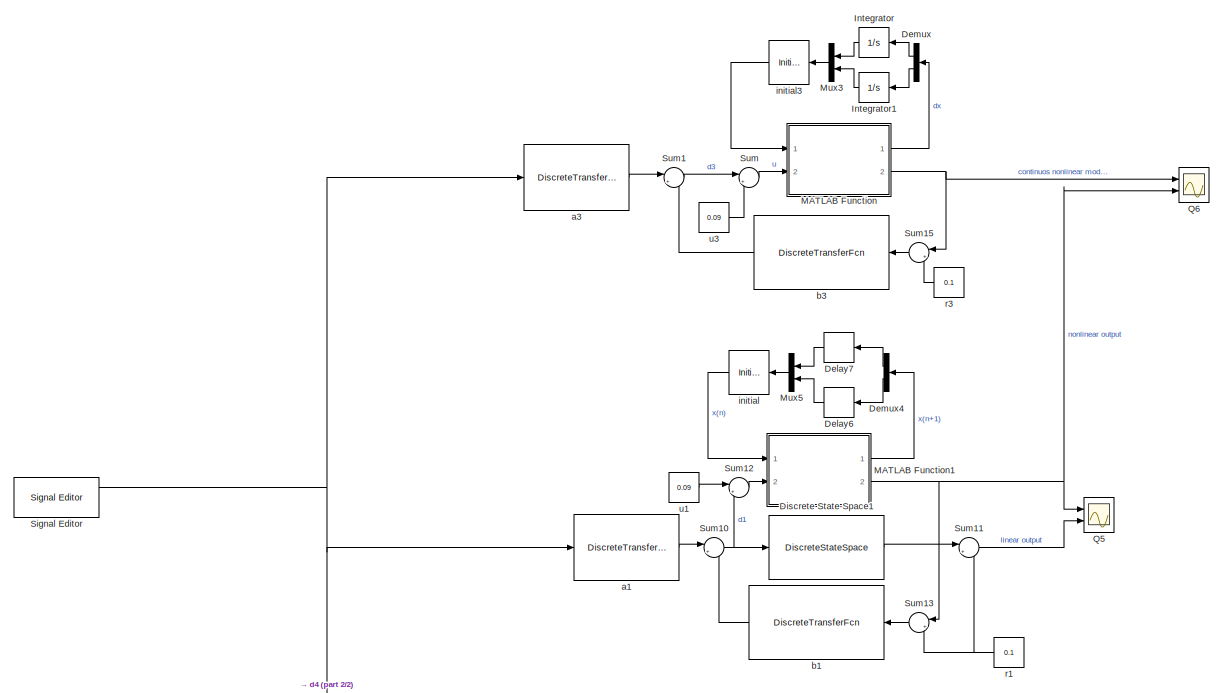
[diagram: root canvas - part 1/2, full width, top band]
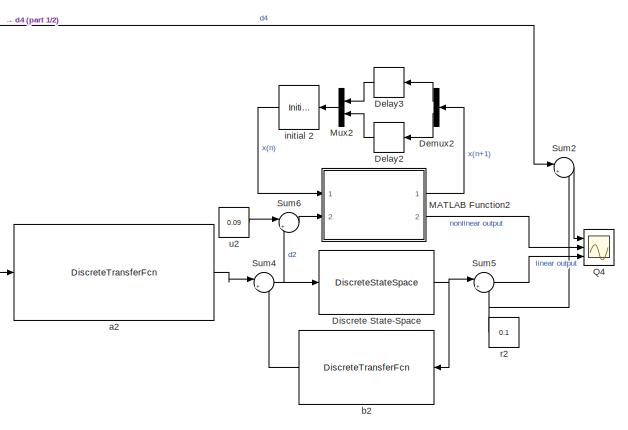
[diagram: root canvas - part 2/2, bottom center region]
MODEL slx_cff41e140faa
KIND model
CONFIG AbsTol = auto
CONFIG EnableMultiTasking = off
CONFIG FixedStep = auto
CONFIG MaxStep = auto
CONFIG MinStep = auto
CONFIG RelTol = 1e-3
CONFIG SampleTimeConstraint = Unconstrained
CONFIG Solver = VariableStepAuto
CONFIG SolverName = VariableStepAuto
CONFIG StartTime = 0.0
CONFIG StopTime = 50
BLOCK [Scope]  Q4
  Floating = off
  NumInputPorts = 3
  Ports = [3]
  ScopeSpecificationString = Simulink.scopes.TimeScopeBlockCfg('CurrentConfiguration', extmgr.ConfigurationSet(extmgr.Configuration('Core','General UI',true),extmgr.Configuration('Core','Source UI',true),extmgr.Configuration('Sources','WiredSimulink',true,'DataLoggingVariableName','ScopeData2'),extmgr.Configuration('Visuals','Time Domain',true,'SerializedDisplays',{struct('MinYLimReal','0.08','MaxYLimReal','0.12','YLabelReal'...<+1785ch>
BLOCK [Delay] Delay2
  DelayLength = 1
  InitialCondition = 0
  InputPortMap = u0
  Ports = [1, 1]
  SampleTime = 0.166
BLOCK [Delay] Delay3
  DelayLength = 1
  InitialCondition = 0
  InputPortMap = u0
  Ports = [1, 1]
  SampleTime = 0.166
BLOCK [Delay] Delay6
  DelayLength = 1
  InitialCondition = 0
  InputPortMap = u0
  Ports = [1, 1]
  SampleTime = 0.166
BLOCK [Delay] Delay7
  DelayLength = 1
  InitialCondition = 0
  InputPortMap = u0
  Ports = [1, 1]
  SampleTime = 0.166
BLOCK [Demux] Demux
  Outputs = 2
  Ports = [1, 2]
BLOCK [Demux] Demux2
  Outputs = 2
  Ports = [1, 2]
BLOCK [Demux] Demux4
  Outputs = 2
  Ports = [1, 2]
BLOCK [DiscreteStateSpace] Discrete State-Space
  A = [0.9884 0.1523;-0.1354 0.8361]
  B = [0.01447;0.1693]
  C = [1 0]
  D = 0
  SampleTime = 0.166
BLOCK [DiscreteStateSpace] Discrete State-Space1
  A = [0.9884 0.1523;-0.1354 0.8361]
  B = [0.01447;0.1693]
  C = [1 0]
  D = 0
  SampleTime = 0.166
BLOCK [Integrator] Integrator
  InitialCondition = 0.1
  Ports = [1, 1]
BLOCK [Integrator] Integrator1
  Ports = [1, 1]
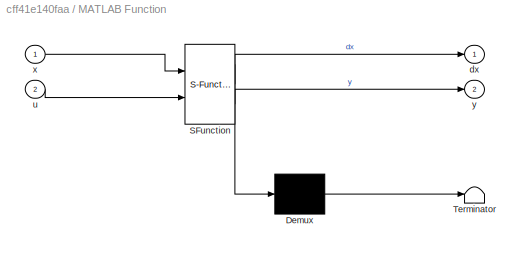
BLOCK [SubSystem] MATLAB Function
  ErrorFcn = Stateflow.Translate.translate
  PermitHierarchicalResolution = ExplicitOnly
  Ports = [2, 2]
  RequestExecContextInheritance = off
  SFBlockType = MATLAB Function
  TreatAsAtomicUnit = on
BLOCK [Demux] MATLAB Function/ Demux 
  Outputs = 1
  Ports = [1, 1]
BLOCK [S-Function] MATLAB Function/ SFunction 
  EnableBusSupport = on
  FunctionName = sf_sfun
  PortCounts = [2 3]
  Ports = [2, 3]
  SFcnIsStateOwnerBlock = off
  SFunctionDeploymentMode = off
  Tag = Stateflow S-Function 2
BLOCK [Terminator] MATLAB Function/ Terminator 
BLOCK [Outport] MATLAB Function/dx
  VectorParamsAs1DForOutWhenUnconnected = off
BLOCK [Inport] MATLAB Function/u
  Port = 2
BLOCK [Inport] MATLAB Function/x
BLOCK [Outport] MATLAB Function/y
  Port = 2
  VectorParamsAs1DForOutWhenUnconnected = off
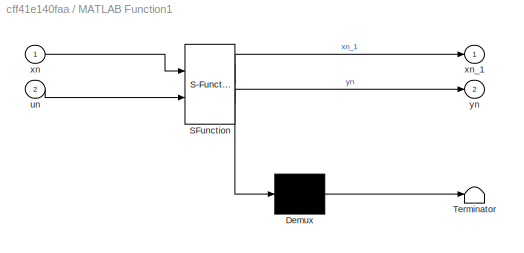
BLOCK [SubSystem] MATLAB Function1
  ErrorFcn = Stateflow.Translate.translate
  PermitHierarchicalResolution = ExplicitOnly
  Ports = [2, 2]
  RequestExecContextInheritance = off
  SFBlockType = MATLAB Function
  TreatAsAtomicUnit = on
BLOCK [Demux] MATLAB Function1/ Demux 
  Outputs = 1
  Ports = [1, 1]
BLOCK [S-Function] MATLAB Function1/ SFunction 
  EnableBusSupport = on
  FunctionName = sf_sfun
  PortCounts = [2 3]
  Ports = [2, 3]
  SFcnIsStateOwnerBlock = off
  SFunctionDeploymentMode = off
  Tag = Stateflow S-Function 1
BLOCK [Terminator] MATLAB Function1/ Terminator 
BLOCK [Inport] MATLAB Function1/un
  Port = 2
BLOCK [Inport] MATLAB Function1/xn
BLOCK [Outport] MATLAB Function1/xn_1
  VectorParamsAs1DForOutWhenUnconnected = off
BLOCK [Outport] MATLAB Function1/yn
  Port = 2
  VectorParamsAs1DForOutWhenUnconnected = off
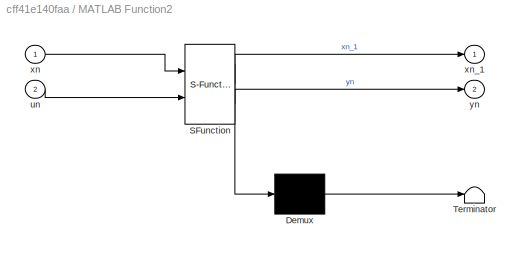
BLOCK [SubSystem] MATLAB Function2
  ErrorFcn = Stateflow.Translate.translate
  PermitHierarchicalResolution = ExplicitOnly
  Ports = [2, 2]
  RequestExecContextInheritance = off
  SFBlockType = MATLAB Function
  TreatAsAtomicUnit = on
BLOCK [Demux] MATLAB Function2/ Demux 
  Outputs = 1
  Ports = [1, 1]
BLOCK [S-Function] MATLAB Function2/ SFunction 
  EnableBusSupport = on
  FunctionName = sf_sfun
  PortCounts = [2 3]
  Ports = [2, 3]
  SFcnIsStateOwnerBlock = off
  SFunctionDeploymentMode = off
  Tag = Stateflow S-Function 3
BLOCK [Terminator] MATLAB Function2/ Terminator 
BLOCK [Inport] MATLAB Function2/un
  Port = 2
BLOCK [Inport] MATLAB Function2/xn
BLOCK [Outport] MATLAB Function2/xn_1
  VectorParamsAs1DForOutWhenUnconnected = off
BLOCK [Outport] MATLAB Function2/yn
  Port = 2
  VectorParamsAs1DForOutWhenUnconnected = off
BLOCK [Mux] Mux2
  DisplayOption = bar
  Inputs = 2
  Ports = [2, 1]
BLOCK [Mux] Mux3
  DisplayOption = bar
  Inputs = 2
  Ports = [2, 1]
BLOCK [Mux] Mux5
  DisplayOption = bar
  Inputs = 2
  Ports = [2, 1]
BLOCK [Scope] Q5
  Floating = off
  NumInputPorts = 2
  Ports = [2]
  ScopeSpecificationString = Simulink.scopes.TimeScopeBlockCfg('CurrentConfiguration', extmgr.ConfigurationSet(extmgr.Configuration('Core','General UI',true),extmgr.Configuration('Core','Source UI',true),extmgr.Configuration('Sources','WiredSimulink',true,'DataLoggingVariableName','ScopeData1'),extmgr.Configuration('Visuals','Time Domain',true,'SerializedDisplays',{struct('MinYLimReal','0.08091','MaxYLimReal','0.11907','YLabe...<+1741ch>
BLOCK [Scope] Q6
  Floating = off
  NumInputPorts = 2
  Ports = [2]
  ScopeSpecificationString = Simulink.scopes.TimeScopeBlockCfg('CurrentConfiguration', extmgr.ConfigurationSet(extmgr.Configuration('Core','General UI',true),extmgr.Configuration('Core','Source UI',true),extmgr.Configuration('Sources','WiredSimulink',true),extmgr.Configuration('Visuals','Time Domain',true,'SerializedDisplays',{struct('MinYLimReal','0.08091','MaxYLimReal','0.11907','YLabelReal','output','MinYLimMag','0.08091',...<+1706ch>
BLOCK [Reference] Signal Editor  REF=SignalEditorBlockLib/Signal Editor
  Ports = [0, 3]
  SourceBlock = SignalEditorBlockLib/Signal Editor
  SourceProductBaseCode = SL
  SourceType = SignalEditor
  UserDataPersistent = on
BLOCK [Sum] Sum
  Inputs = |++
  Ports = [2, 1]
BLOCK [Sum] Sum1
  Inputs = |+-
  Ports = [2, 1]
BLOCK [Sum] Sum10
  Inputs = |+-
  Ports = [2, 1]
BLOCK [Sum] Sum11
  Inputs = |++
  Ports = [2, 1]
BLOCK [Sum] Sum12
  Inputs = |++
  Ports = [2, 1]
BLOCK [Sum] Sum13
  Inputs = |+-
  NameLocation = top
  Ports = [2, 1]
BLOCK [Sum] Sum15
  Inputs = |+-
  NameLocation = top
  Ports = [2, 1]
BLOCK [Sum] Sum2
  Inputs = |++
  Ports = [2, 1]
BLOCK [Sum] Sum4
  Inputs = |+-
  Ports = [2, 1]
BLOCK [Sum] Sum5
  Inputs = |++
  Ports = [2, 1]
BLOCK [Sum] Sum6
  Inputs = |++
  Ports = [2, 1]
BLOCK [DiscreteTransferFcn] a1
  Denominator = [1, 0.408]
  InputPortMap = u0
  Numerator = [10.634 0]
  Ports = [1, 1]
  SampleTime = 0.166
BLOCK [DiscreteTransferFcn] a2
  Denominator = [1 0.408]
  InputPortMap = u0
  Numerator = [10.634 0]
  Ports = [1, 1]
  SampleTime = 0.166
BLOCK [DiscreteTransferFcn] a3
  Denominator = [1, 0.408]
  InputPortMap = u0
  Numerator = [10.634 0]
  Ports = [1, 1]
  SampleTime = 0.166
BLOCK [DiscreteTransferFcn] b1
  Denominator = [1, 0.408]
  InputPortMap = u0
  Numerator = [34.814 -25.288]
  Ports = [1, 1]
  SampleTime = 0.166
BLOCK [DiscreteTransferFcn] b2
  Denominator = [1, 0.408]
  InputPortMap = u0
  Numerator = [34.814, -25.288]
  Ports = [1, 1]
  SampleTime = 0.166
BLOCK [DiscreteTransferFcn] b3
  Denominator = [1, 0.408]
  InputPortMap = u0
  Numerator = [34.814, -25.288]
  Ports = [1, 1]
  SampleTime = 0.166
BLOCK [InitialCondition] initial
  Value = [0.1;0]
BLOCK [InitialCondition] initial 2
  Value = [0.1;0]
BLOCK [InitialCondition] initial3
  Value = [0.1;0]
BLOCK [Constant] r1
  SampleTime = 0.166
  Value = 0.1
BLOCK [Constant] r2
  SampleTime = 0.166
  Value = 0.1
BLOCK [Constant] r3
  SampleTime = 0.166
  Value = 0.1
BLOCK [Constant] u1
  SampleTime = 0.166
  Value = 0.09
BLOCK [Constant] u2
  SampleTime = 0.166
  Value = 0.09
BLOCK [Constant] u3
  SampleTime = 0.166
  Value = 0.09
LINE Delay2:1 -> Mux2:2
LINE Delay3:1 -> Mux2:1
LINE Delay6:1 -> Mux5:2
LINE Delay7:1 -> Mux5:1
LINE Demux2:1 -> Delay3:1
LINE Demux2:2 -> Delay2:1
LINE Demux4:1 -> Delay7:1
LINE Demux4:2 -> Delay6:1
LINE Demux:1 -> Integrator:1
LINE Demux:2 -> Integrator1:1
LINE Discrete State-Space1:1 -> Sum11:1
NET Discrete State-Space:1 -> Sum5:1, b2:1
LINE Integrator1:1 -> Mux3:2
LINE Integrator:1 -> Mux3:1
LINE MATLAB Function1:1 -> Demux4:1
NET MATLAB Function1:2 -> Q5:1, Q6:2, Sum13:1
LINE MATLAB Function2:1 -> Demux2:1
LINE MATLAB Function2:2 ->  Q4:2
LINE MATLAB Function:1 -> Demux:1
NET MATLAB Function:2 -> Q6:1, Sum15:1
LINE Mux2:1 -> initial 2:1
LINE Mux3:1 -> initial3:1
LINE Mux5:1 -> initial:1
NET Signal Editor:1 -> Sum2:1, a1:1, a2:1, a3:1
NET Sum10:1 -> Discrete State-Space1:1, Sum12:2
LINE Sum11:1 -> Q5:2
LINE Sum12:1 -> MATLAB Function1:2
LINE Sum13:1 -> b1:1
LINE Sum15:1 -> b3:1
LINE Sum1:1 -> Sum:1
LINE Sum2:1 ->  Q4:1
NET Sum4:1 -> Discrete State-Space:1, Sum6:2
LINE Sum5:1 ->  Q4:3
LINE Sum6:1 -> MATLAB Function2:2
LINE Sum:1 -> MATLAB Function:2
LINE a1:1 -> Sum10:1
LINE a2:1 -> Sum4:1
LINE a3:1 -> Sum1:1
LINE b1:1 -> Sum10:2
LINE b2:1 -> Sum4:2
LINE b3:1 -> Sum1:2
LINE initial 2:1 -> MATLAB Function2:1
LINE initial3:1 -> MATLAB Function:1
LINE initial:1 -> MATLAB Function1:1
NET r1:1 -> Sum11:2, Sum13:2
NET r2:1 -> Sum2:2, Sum5:2
LINE r3:1 -> Sum15:2
LINE u1:1 -> Sum12:1
LINE u2:1 -> Sum6:1
LINE u3:1 -> Sum:2
note: NET lines group one-source signal fan-out (src -> all destinations, sorted); 1:1 wires keep LINE
CHART MATLAB Function1 states=1 transitions=1
  STATE_LABEL 'eML_blk_kernel()'
  STATE_LABEL 'SCRIPT:\nfunction [xn_1,yn] = g1(xn,un)\nxn_1 = [xn(1)+0.166*xn(2);-0.166*xn(1)+(1-0.166)*xn(2)+0.166*un/(1-xn(1))];\nyn = [1 0]*xn;\n'
CHART MATLAB Function states=1 transitions=1
  STATE_LABEL 'eML_blk_kernel()'
  STATE_LABEL 'SCRIPT:\nfunction [dx,y] = system(x,u)\ndx = [x(2);-x(1)-x(2)+u/(1-x(1))];\ny  = [1 0]*x;'
CHART MATLAB Function2 states=1 transitions=1
  STATE_LABEL 'eML_blk_kernel()'
  STATE_LABEL 'SCRIPT:\nfunction [xn_1,yn] = g1(xn,un)\nxn_1 = [xn(1)+0.166*xn(2);-0.166*xn(1)+(1-0.166)*xn(2)+0.166*un/(1-xn(1))];\nyn = [1 0]*xn;\n'
CHART  states=0 transitions=0
CHART  states=0 transitions=0
CHART  states=0 transitions=0
